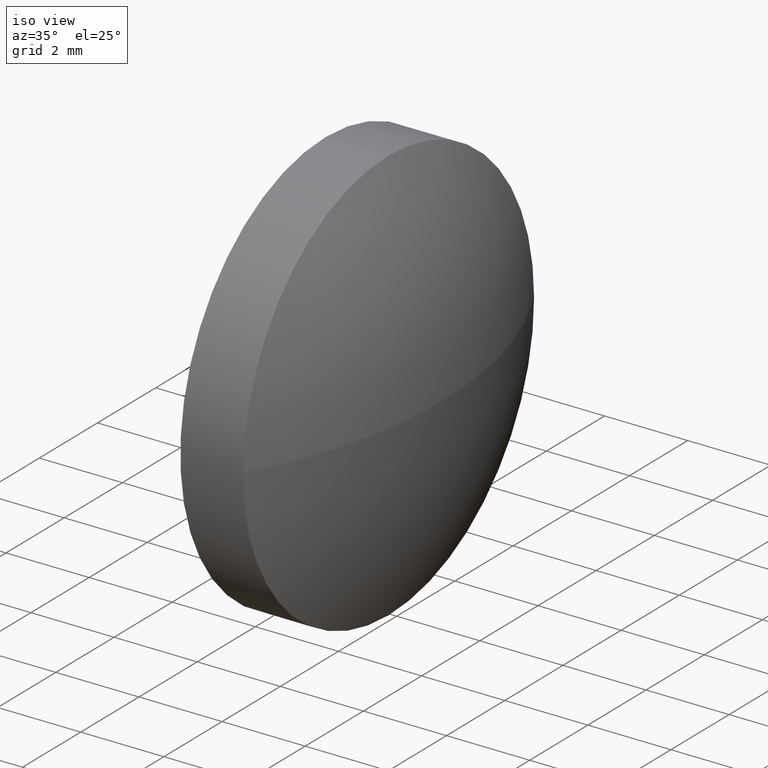
[diagram: clean part render]
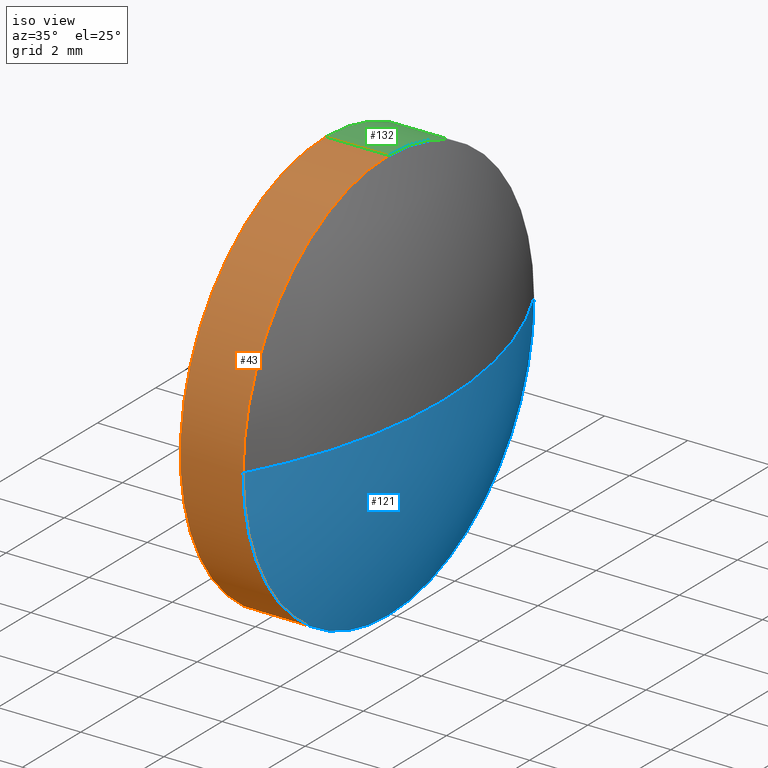
[diagram: same view with three faces highlighted in distinct colors, each labeled with its STEP entity id]
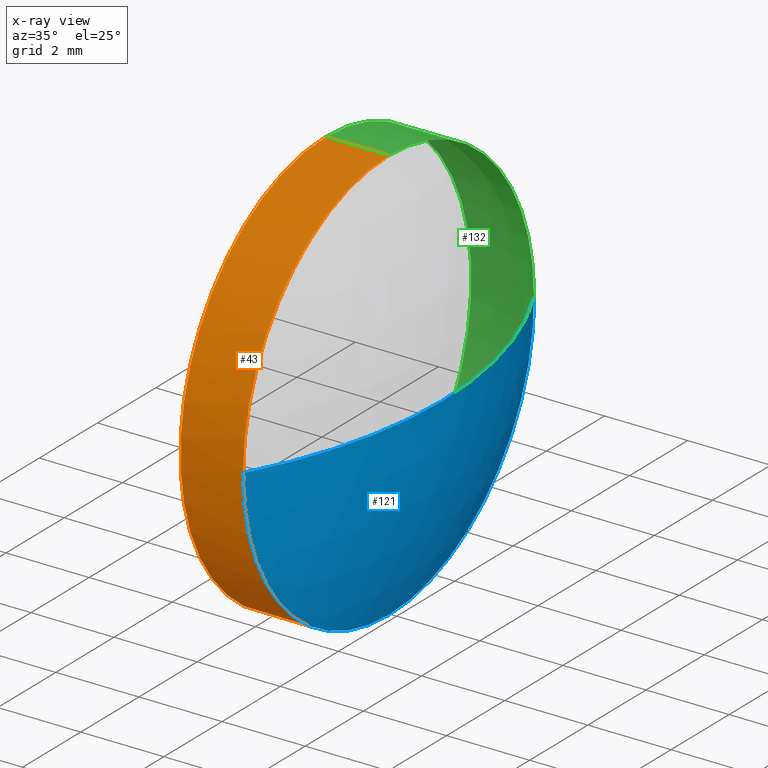
[diagram: x-ray of the same camera — body ghosted, the three highlighted faces saturated]
A machine part, iso view with three faces highlighted in distinct colors.
The next image is the same camera in x-ray (body ghosted, the three faces saturated) — at least one of them is partly hidden behind the body in this view.
Their STEP definitions:

[orange] entity #43 — the highlighted cylindrical surface (partial cylindrical patch) has radius 5 mm, axis along (-1, -0, -0).
#2 = CARTESIAN_POINT ( 'NONE',  ( 652.1120024651052100, 189.5627684869003800, 0.0000000000000000000 ) ) ;
#12 = EDGE_CURVE ( 'NONE', #135, #75, #102, .T. ) ;
#17 = EDGE_LOOP ( 'NONE', ( #60, #112, #68, #42, #29 ) ) ;
#19 = DIRECTION ( 'NONE',  ( -1.000000000000000000, -0.0000000000000000000, -0.0000000000000000000 ) ) ;
#21 = DIRECTION ( 'NONE',  ( 0.0000000000000000000, 0.0000000000000000000, 1.000000000000000000 ) ) ;
#24 = EDGE_CURVE ( 'NONE', #142, #174, #185, .T. ) ;
#29 = ORIENTED_EDGE ( 'NONE', *, *, #59, .F. ) ;
#42 = ORIENTED_EDGE ( 'NONE', *, *, #55, .T. ) ;
#43 = ADVANCED_FACE ( 'NONE', ( #136 ), #47, .T. ) ;
#47 = CYLINDRICAL_SURFACE ( 'NONE', #122, 5.000000000000004400 ) ;
#54 = LINE ( 'NONE', #176, #165 ) ;
#55 = EDGE_CURVE ( 'NONE', #174, #107, #54, .T. ) ;
#58 = CIRCLE ( 'NONE', #81, 5.000000000000004400 ) ;
#59 = EDGE_CURVE ( 'NONE', #75, #107, #131, .T. ) ;
#60 = ORIENTED_EDGE ( 'NONE', *, *, #12, .F. ) ;
#62 = CARTESIAN_POINT ( 'NONE',  ( 650.6020024651052200, 189.5627684869003800, -5.000000000000004400 ) ) ;
#68 = ORIENTED_EDGE ( 'NONE', *, *, #24, .T. ) ;
#74 = DIRECTION ( 'NONE',  ( -1.000000000000000000, -0.0000000000000000000, -0.0000000000000000000 ) ) ;
#75 = VERTEX_POINT ( 'NONE', #62 ) ;
#80 = CARTESIAN_POINT ( 'NONE',  ( 650.6020024651052200, 189.5627684869003800, 0.0000000000000000000 ) ) ;
#81 = AXIS2_PLACEMENT_3D ( 'NONE', #158, #181, #101 ) ;
#82 = VECTOR ( 'NONE', #163, 1000.000000000000000 ) ;
#90 = CARTESIAN_POINT ( 'NONE',  ( 649.6604519933307500, 189.5627684869003800, -5.000000000000004400 ) ) ;
#92 = DIRECTION ( 'NONE',  ( -1.000000000000000000, -0.0000000000000000000, -0.0000000000000000000 ) ) ;
#98 = DIRECTION ( 'NONE',  ( -1.000000000000000000, -0.0000000000000000000, -0.0000000000000000000 ) ) ;
#101 = DIRECTION ( 'NONE',  ( 0.0000000000000000000, 0.0000000000000000000, 1.000000000000000000 ) ) ;
#102 = LINE ( 'NONE', #90, #82 ) ;
#107 = VERTEX_POINT ( 'NONE', #179 ) ;
#108 = CARTESIAN_POINT ( 'NONE',  ( 649.6604519933307500, 189.5627684869003800, 0.0000000000000000000 ) ) ;
#112 = ORIENTED_EDGE ( 'NONE', *, *, #151, .T. ) ;
#122 = AXIS2_PLACEMENT_3D ( 'NONE', #108, #74, #21 ) ;
#127 = DIRECTION ( 'NONE',  ( 0.0000000000000000000, 0.0000000000000000000, 1.000000000000000000 ) ) ;
#131 = CIRCLE ( 'NONE', #134, 5.000000000000004400 ) ;
#134 = AXIS2_PLACEMENT_3D ( 'NONE', #80, #19, #127 ) ;
#135 = VERTEX_POINT ( 'NONE', #139 ) ;
#136 = FACE_OUTER_BOUND ( 'NONE', #17, .T. ) ;
#139 = CARTESIAN_POINT ( 'NONE',  ( 652.1120024651052100, 189.5627684869003800, -5.000000000000004400 ) ) ;
#142 = VERTEX_POINT ( 'NONE', #152 ) ;
#151 = EDGE_CURVE ( 'NONE', #135, #142, #58, .T. ) ;
#152 = CARTESIAN_POINT ( 'NONE',  ( 652.1120024651052100, 184.5627684869003500, -6.123233995736773200E-016 ) ) ;
#158 = CARTESIAN_POINT ( 'NONE',  ( 652.1120024651052100, 189.5627684869003800, 0.0000000000000000000 ) ) ;
#162 = DIRECTION ( 'NONE',  ( 0.0000000000000000000, 0.0000000000000000000, 1.000000000000000000 ) ) ;
#163 = DIRECTION ( 'NONE',  ( -1.000000000000000000, -0.0000000000000000000, -0.0000000000000000000 ) ) ;
#165 = VECTOR ( 'NONE', #98, 1000.000000000000000 ) ;
#166 = CARTESIAN_POINT ( 'NONE',  ( 652.1120024651052100, 189.5627684869003800, 5.000000000000004400 ) ) ;
#174 = VERTEX_POINT ( 'NONE', #166 ) ;
#176 = CARTESIAN_POINT ( 'NONE',  ( 649.6604519933307500, 189.5627684869003800, 5.000000000000004400 ) ) ;
#179 = CARTESIAN_POINT ( 'NONE',  ( 650.6020024651052200, 189.5627684869003800, 5.000000000000004400 ) ) ;
#181 = DIRECTION ( 'NONE',  ( -1.000000000000000000, -0.0000000000000000000, -0.0000000000000000000 ) ) ;
#183 = AXIS2_PLACEMENT_3D ( 'NONE', #2, #92, #162 ) ;
#185 = CIRCLE ( 'NONE', #183, 5.000000000000004400 ) ;

[blue] entity #121 — the highlighted spherical surface has radius 10.3349 mm.
#1 = ORIENTED_EDGE ( 'NONE', *, *, #30, .F. ) ;
#3 = DIRECTION ( 'NONE',  ( 0.0000000000000000000, 1.000000000000000000, 1.224646799147353200E-016 ) ) ;
#4 = CARTESIAN_POINT ( 'NONE',  ( 643.0670799844850800, 189.5627684869003500, 0.0000000000000000000 ) ) ;
#5 = AXIS2_PLACEMENT_3D ( 'NONE', #15, #14, #31 ) ;
#6 = DIRECTION ( 'NONE',  ( -0.0000000000000000000, 0.0000000000000000000, -1.000000000000000000 ) ) ;
#13 = SPHERICAL_SURFACE ( 'NONE', #137, 10.33492248062017900 ) ;
#14 = DIRECTION ( 'NONE',  ( -1.000000000000000000, -0.0000000000000000000, -0.0000000000000000000 ) ) ;
#15 = CARTESIAN_POINT ( 'NONE',  ( 652.1120024651052100, 189.5627684869003800, 0.0000000000000000000 ) ) ;
#16 = AXIS2_PLACEMENT_3D ( 'NONE', #4, #18, #175 ) ;
#18 = DIRECTION ( 'NONE',  ( -0.0000000000000000000, 0.0000000000000000000, 1.000000000000000000 ) ) ;
#27 = EDGE_CURVE ( 'NONE', #28, #135, #89, .T. ) ;
#28 = VERTEX_POINT ( 'NONE', #138 ) ;
#30 = EDGE_CURVE ( 'NONE', #105, #28, #172, .T. ) ;
#31 = DIRECTION ( 'NONE',  ( 0.0000000000000000000, 0.0000000000000000000, 1.000000000000000000 ) ) ;
#46 = FACE_OUTER_BOUND ( 'NONE', #123, .T. ) ;
#49 = AXIS2_PLACEMENT_3D ( 'NONE', #51, #155, #3 ) ;
#51 = CARTESIAN_POINT ( 'NONE',  ( 643.0670799844850800, 189.5627684869003500, 0.0000000000000000000 ) ) ;
#57 = ORIENTED_EDGE ( 'NONE', *, *, #151, .F. ) ;
#58 = CIRCLE ( 'NONE', #81, 5.000000000000004400 ) ;
#63 = CIRCLE ( 'NONE', #49, 10.33492248062017900 ) ;
#81 = AXIS2_PLACEMENT_3D ( 'NONE', #158, #181, #101 ) ;
#86 = ORIENTED_EDGE ( 'NONE', *, *, #106, .T. ) ;
#89 = CIRCLE ( 'NONE', #5, 5.000000000000004400 ) ;
#101 = DIRECTION ( 'NONE',  ( 0.0000000000000000000, 0.0000000000000000000, 1.000000000000000000 ) ) ;
#105 = VERTEX_POINT ( 'NONE', #110 ) ;
#106 = EDGE_CURVE ( 'NONE', #105, #142, #63, .T. ) ;
#110 = CARTESIAN_POINT ( 'NONE',  ( 653.4020024651052800, 189.5627684869003500, 0.0000000000000000000 ) ) ;
#113 = DIRECTION ( 'NONE',  ( 0.0000000000000000000, 1.000000000000000000, 0.0000000000000000000 ) ) ;
#121 = ADVANCED_FACE ( 'NONE', ( #46 ), #13, .T. ) ;
#123 = EDGE_LOOP ( 'NONE', ( #1, #86, #57, #154 ) ) ;
#129 = CARTESIAN_POINT ( 'NONE',  ( 643.0670799844850800, 189.5627684869003500, 0.0000000000000000000 ) ) ;
#135 = VERTEX_POINT ( 'NONE', #139 ) ;
#137 = AXIS2_PLACEMENT_3D ( 'NONE', #129, #6, #113 ) ;
#138 = CARTESIAN_POINT ( 'NONE',  ( 652.1120024651052100, 194.5627684869003800, 0.0000000000000000000 ) ) ;
#139 = CARTESIAN_POINT ( 'NONE',  ( 652.1120024651052100, 189.5627684869003800, -5.000000000000004400 ) ) ;
#142 = VERTEX_POINT ( 'NONE', #152 ) ;
#151 = EDGE_CURVE ( 'NONE', #135, #142, #58, .T. ) ;
#152 = CARTESIAN_POINT ( 'NONE',  ( 652.1120024651052100, 184.5627684869003500, -6.123233995736773200E-016 ) ) ;
#154 = ORIENTED_EDGE ( 'NONE', *, *, #27, .F. ) ;
#155 = DIRECTION ( 'NONE',  ( 0.0000000000000000000, 1.224646799147353200E-016, -1.000000000000000000 ) ) ;
#158 = CARTESIAN_POINT ( 'NONE',  ( 652.1120024651052100, 189.5627684869003800, 0.0000000000000000000 ) ) ;
#172 = CIRCLE ( 'NONE', #16, 10.33492248062017900 ) ;
#175 = DIRECTION ( 'NONE',  ( 1.000000000000000000, 0.0000000000000000000, 0.0000000000000000000 ) ) ;
#181 = DIRECTION ( 'NONE',  ( -1.000000000000000000, -0.0000000000000000000, -0.0000000000000000000 ) ) ;

[green] entity #132 — the highlighted cylindrical surface (partial cylindrical patch) has radius 5 mm, axis along (-1, -0, -0).
#5 = AXIS2_PLACEMENT_3D ( 'NONE', #15, #14, #31 ) ;
#9 = AXIS2_PLACEMENT_3D ( 'NONE', #78, #22, #128 ) ;
#12 = EDGE_CURVE ( 'NONE', #135, #75, #102, .T. ) ;
#14 = DIRECTION ( 'NONE',  ( -1.000000000000000000, -0.0000000000000000000, -0.0000000000000000000 ) ) ;
#15 = CARTESIAN_POINT ( 'NONE',  ( 652.1120024651052100, 189.5627684869003800, 0.0000000000000000000 ) ) ;
#22 = DIRECTION ( 'NONE',  ( -1.000000000000000000, -0.0000000000000000000, -0.0000000000000000000 ) ) ;
#26 = ORIENTED_EDGE ( 'NONE', *, *, #27, .T. ) ;
#27 = EDGE_CURVE ( 'NONE', #28, #135, #89, .T. ) ;
#28 = VERTEX_POINT ( 'NONE', #138 ) ;
#31 = DIRECTION ( 'NONE',  ( 0.0000000000000000000, 0.0000000000000000000, 1.000000000000000000 ) ) ;
#32 = CARTESIAN_POINT ( 'NONE',  ( 649.6604519933307500, 189.5627684869003800, 0.0000000000000000000 ) ) ;
#35 = EDGE_CURVE ( 'NONE', #107, #75, #37, .T. ) ;
#37 = CIRCLE ( 'NONE', #173, 5.000000000000004400 ) ;
#48 = EDGE_CURVE ( 'NONE', #174, #28, #168, .T. ) ;
#52 = DIRECTION ( 'NONE',  ( 0.0000000000000000000, 0.0000000000000000000, 1.000000000000000000 ) ) ;
#54 = LINE ( 'NONE', #176, #165 ) ;
#55 = EDGE_CURVE ( 'NONE', #174, #107, #54, .T. ) ;
#62 = CARTESIAN_POINT ( 'NONE',  ( 650.6020024651052200, 189.5627684869003800, -5.000000000000004400 ) ) ;
#70 = ORIENTED_EDGE ( 'NONE', *, *, #48, .T. ) ;
#75 = VERTEX_POINT ( 'NONE', #62 ) ;
#78 = CARTESIAN_POINT ( 'NONE',  ( 652.1120024651052100, 189.5627684869003800, 0.0000000000000000000 ) ) ;
#79 = DIRECTION ( 'NONE',  ( -1.000000000000000000, -0.0000000000000000000, -0.0000000000000000000 ) ) ;
#82 = VECTOR ( 'NONE', #163, 1000.000000000000000 ) ;
#89 = CIRCLE ( 'NONE', #5, 5.000000000000004400 ) ;
#90 = CARTESIAN_POINT ( 'NONE',  ( 649.6604519933307500, 189.5627684869003800, -5.000000000000004400 ) ) ;
#91 = AXIS2_PLACEMENT_3D ( 'NONE', #32, #125, #130 ) ;
#98 = DIRECTION ( 'NONE',  ( -1.000000000000000000, -0.0000000000000000000, -0.0000000000000000000 ) ) ;
#102 = LINE ( 'NONE', #90, #82 ) ;
#107 = VERTEX_POINT ( 'NONE', #179 ) ;
#111 = CARTESIAN_POINT ( 'NONE',  ( 650.6020024651052200, 189.5627684869003800, 0.0000000000000000000 ) ) ;
#125 = DIRECTION ( 'NONE',  ( -1.000000000000000000, -0.0000000000000000000, -0.0000000000000000000 ) ) ;
#128 = DIRECTION ( 'NONE',  ( 0.0000000000000000000, 0.0000000000000000000, 1.000000000000000000 ) ) ;
#130 = DIRECTION ( 'NONE',  ( 0.0000000000000000000, 0.0000000000000000000, 1.000000000000000000 ) ) ;
#132 = ADVANCED_FACE ( 'NONE', ( #159 ), #156, .T. ) ;
#135 = VERTEX_POINT ( 'NONE', #139 ) ;
#138 = CARTESIAN_POINT ( 'NONE',  ( 652.1120024651052100, 194.5627684869003800, 0.0000000000000000000 ) ) ;
#139 = CARTESIAN_POINT ( 'NONE',  ( 652.1120024651052100, 189.5627684869003800, -5.000000000000004400 ) ) ;
#148 = ORIENTED_EDGE ( 'NONE', *, *, #55, .F. ) ;
#150 = ORIENTED_EDGE ( 'NONE', *, *, #35, .F. ) ;
#156 = CYLINDRICAL_SURFACE ( 'NONE', #91, 5.000000000000004400 ) ;
#159 = FACE_OUTER_BOUND ( 'NONE', #171, .T. ) ;
#161 = ORIENTED_EDGE ( 'NONE', *, *, #12, .T. ) ;
#163 = DIRECTION ( 'NONE',  ( -1.000000000000000000, -0.0000000000000000000, -0.0000000000000000000 ) ) ;
#165 = VECTOR ( 'NONE', #98, 1000.000000000000000 ) ;
#166 = CARTESIAN_POINT ( 'NONE',  ( 652.1120024651052100, 189.5627684869003800, 5.000000000000004400 ) ) ;
#168 = CIRCLE ( 'NONE', #9, 5.000000000000004400 ) ;
#171 = EDGE_LOOP ( 'NONE', ( #26, #161, #150, #148, #70 ) ) ;
#173 = AXIS2_PLACEMENT_3D ( 'NONE', #111, #79, #52 ) ;
#174 = VERTEX_POINT ( 'NONE', #166 ) ;
#176 = CARTESIAN_POINT ( 'NONE',  ( 649.6604519933307500, 189.5627684869003800, 5.000000000000004400 ) ) ;
#179 = CARTESIAN_POINT ( 'NONE',  ( 650.6020024651052200, 189.5627684869003800, 5.000000000000004400 ) ) ;